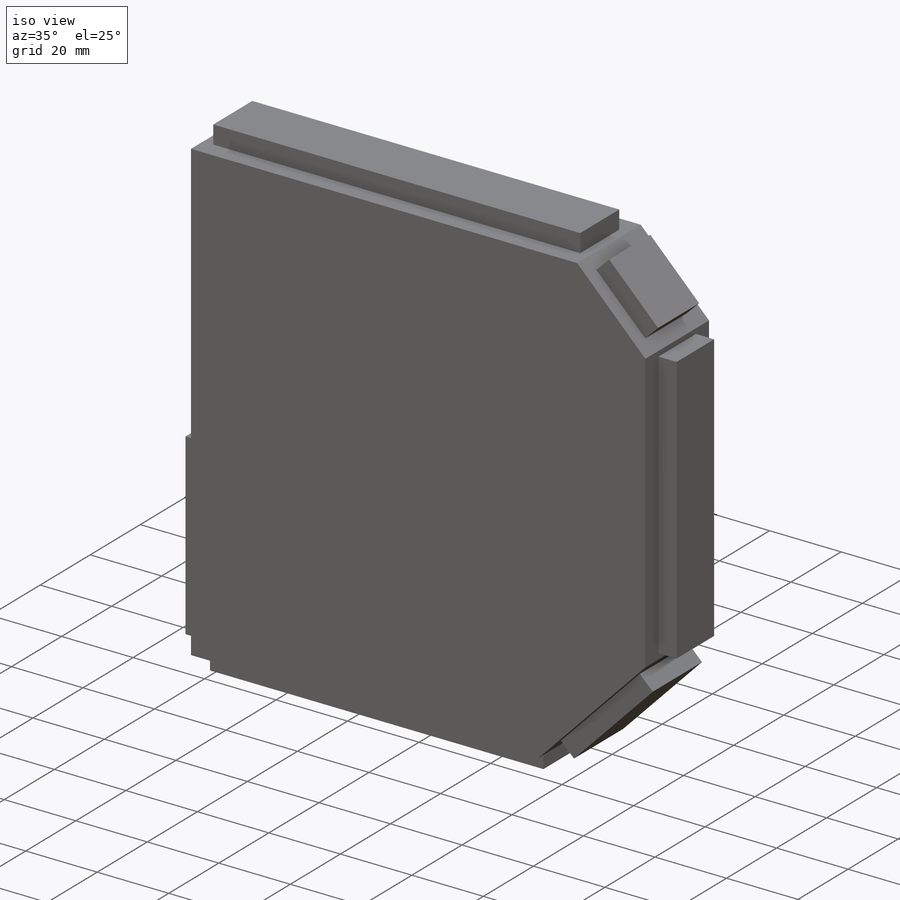
[diagram: iso view]
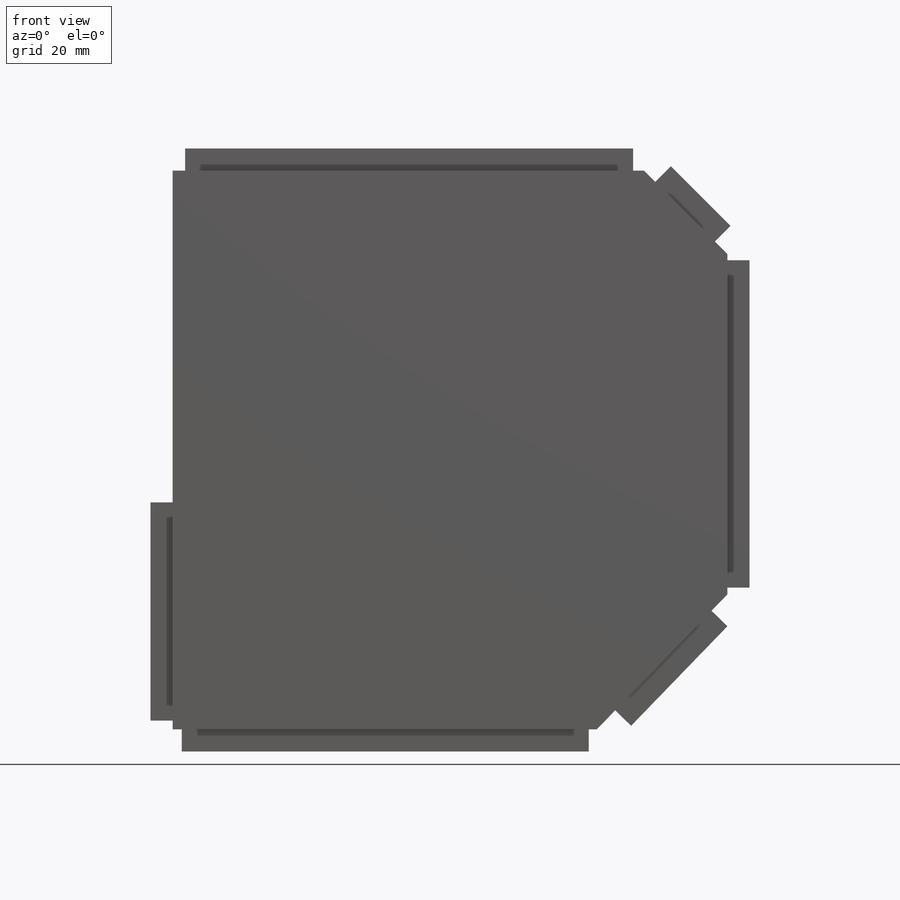
[diagram: front view]
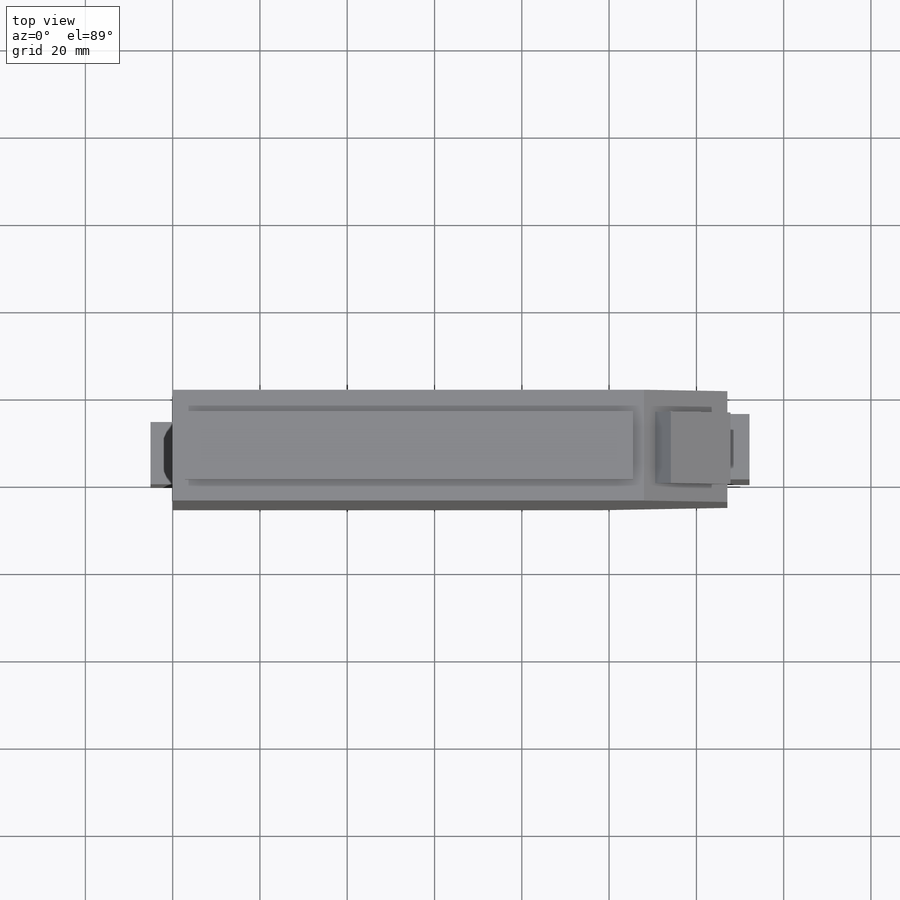
[diagram: top view]
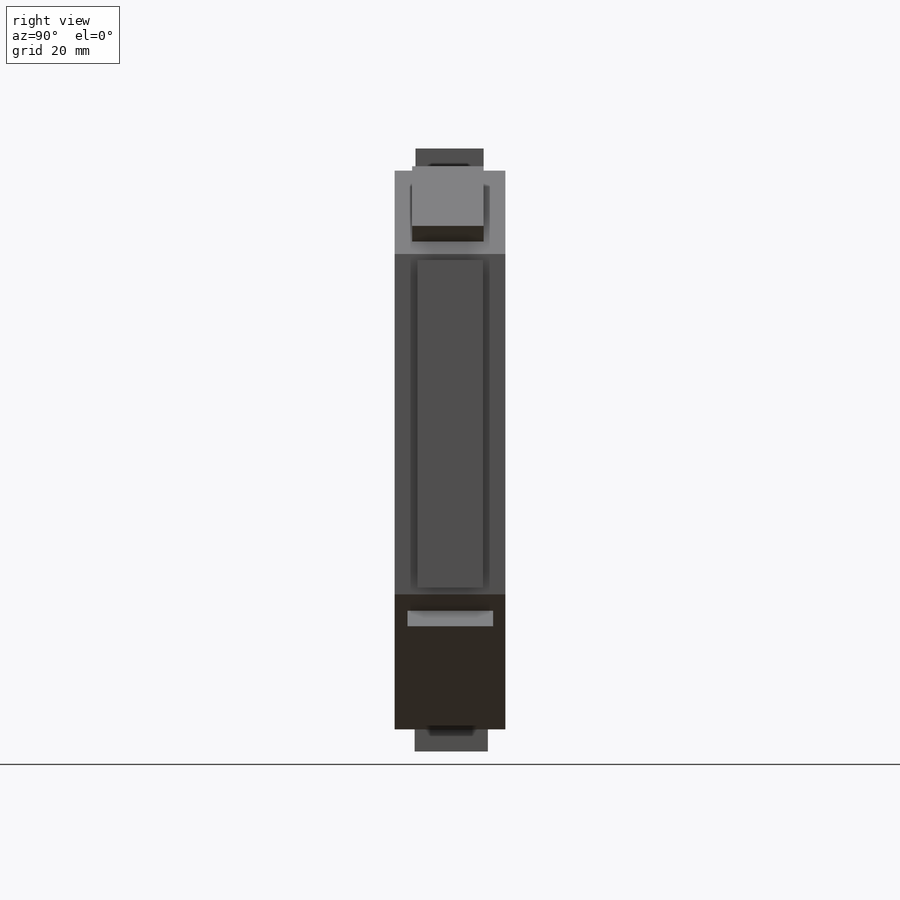
[diagram: right view]
SOLIDWORKS PART (.sldprt)
format: sldprt  version: not decoded by parser v0  size: 251,392 bytes
history: native  units: mm
features: sketch x13, extrude x7, cut_extrude x6, material x1, plane x1 (+11 scaffold rows collapsed)
feature tree (39):
  scaffold x11  (default folders/planes/origin — collapsed)
  material  "Material <not specified>"
  sketch  "Sketch1"  dims[c1.D1=108.0mm c2.D1=45.0deg c3.D1=44.0mm]
  extrude  "Boss-Extrude1"  Depth=25.4mm
  sketch  "Sketch2"  dims[D1=75.0mm]
  cut_extrude  "Cut-Extrude1"  Depth=25.4mm
  sketch  "Sketch3"  dims[D1=15.0mm]
  cut_extrude  "Cut-Extrude2"  Depth=12.7mm
  sketch  "Sketch4"
  cut_extrude  "Cut-Extrude3"  Depth=38.1mm
  sketch  "Sketch5"
  cut_extrude  "Cut-Extrude4"  Depth=101.6mm
  sketch  "Sketch6"
  cut_extrude  "Cut-Extrude5"  Depth=25.4mm
  sketch  "Sketch7"
  cut_extrude  "Cut-Extrude6"  Depth=25.4mm
  plane  "Plane1"
  extrude  "Boss-Extrude2"  [1 undecoded]
  sketch  "Sketch4<2>"  dims[D1=5.08mm]
  extrude  "Boss-Extrude4"  [1 undecoded]
  sketch  "Sketch5<2>"  dims[D1=5.08mm]
  extrude  "Boss-Extrude5"  [1 undecoded]
  sketch  "Sketch7<2>"  dims[D1=5.08mm]
  extrude  "Boss-Extrude6"  [1 undecoded]
  sketch  "Sketch6<2>"  dims[D1=5.08mm]
  extrude  "Boss-Extrude7"  [1 undecoded]
  sketch  "Sketch3<2>"  dims[D1=5.08mm]
  extrude  "Boss-Extrude8"  [1 undecoded]
  sketch  "Sketch2<3>"  dims[D1=5.08mm]
decode coverage: 16 of 26 modeling features carry decoded parameters
note: 6 parameter values undecoded
summary: no parameter record found for 6 features
note: suppression state not decoded; provenance and decode notes live in map.json
